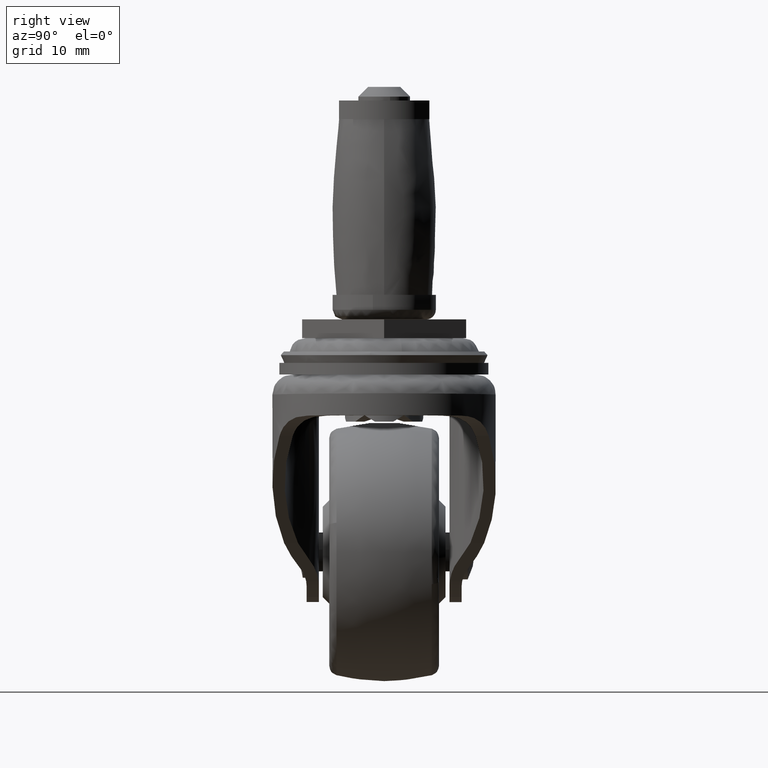
[diagram: clean part render]
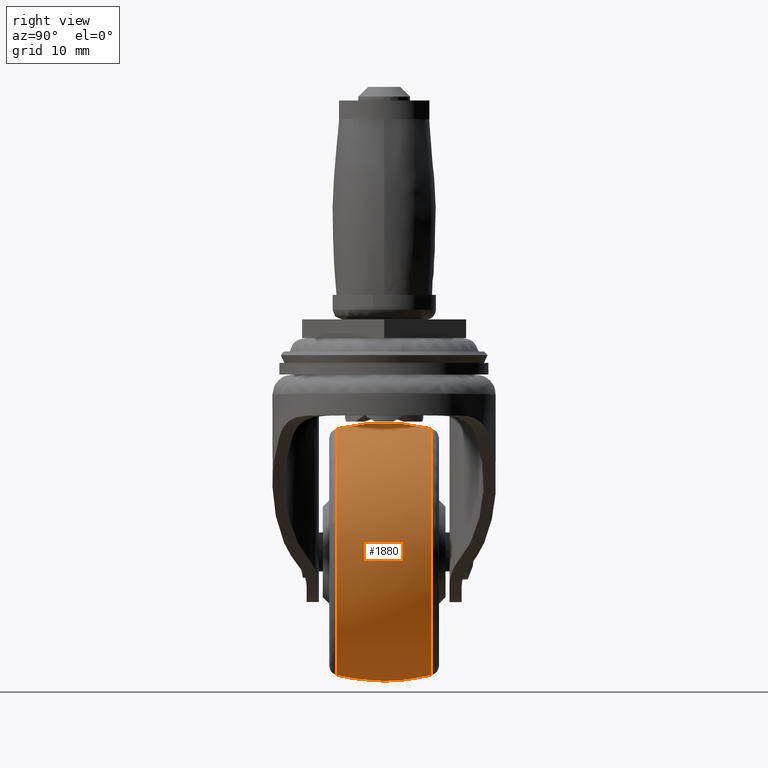
[diagram: same view with one face highlighted and labeled with its STEP entity id]
A machine part, right view. The second image highlights one B-rep face of the part: STEP entity #1880.
In plain terms, the highlighted face is a freeform B-spline surface patch.
Its self-contained STEP definition (entity closure, byte-faithful):
#1216=CARTESIAN_POINT('',(-11.320739614361690,-7.368421003013120,-53.467527986853902));
#1217=VERTEX_POINT('',#1216);
#1231=CARTESIAN_POINT('',(-0.460264550869881,-7.368420298789892,-31.487350249649111));
#1232=VERTEX_POINT('',#1231);
#1233=CARTESIAN_POINT('',(-11.320739614361681,-7.368421003013122,-53.467527986853895));
#1234=CARTESIAN_POINT('',(0.081031123244601,-7.368420835890617,-48.454961684269577));
#1235=CARTESIAN_POINT('',(0.081031123244601,-7.368420428483965,-35.999994841856477));
#1236=CARTESIAN_POINT('',(0.081031123244601,-7.368420353616889,-33.711208099936265));
#1237=CARTESIAN_POINT('',(-0.460264550869881,-7.368420298789892,-31.487350249649115));
#1245=(BOUNDED_CURVE()B_SPLINE_CURVE(2,(#1233,#1234,#1235,#1236,#1237),.UNSPECIFIED.,.F.,.U.)B_SPLINE_CURVE_WITH_KNOTS((3,2,3),(0.068337989520788,0.250000000000000,0.290401676072349),.UNSPECIFIED.)CURVE()GEOMETRIC_REPRESENTATION_ITEM()RATIONAL_B_SPLINE_CURVE((0.883644850290386,0.787169716058481,1.0,0.952666492198845,0.920631808794092))REPRESENTATION_ITEM(''));
#1246=EDGE_CURVE('',#1217,#1232,#1245,.T.);
#1345=CARTESIAN_POINT('',(-19.0,-7.368419804336250,-16.918963560468161));
#1346=VERTEX_POINT('',#1345);
#1347=CARTESIAN_POINT('',(-0.460264550869881,-7.368420298789892,-31.487350249649111));
#1348=CARTESIAN_POINT('',(-4.006267234599621,-7.368419804336250,-16.918963560468164));
#1349=CARTESIAN_POINT('',(-19.0,-7.368419804336250,-16.918963560468161));
#1357=(BOUNDED_CURVE()B_SPLINE_CURVE(2,(#1347,#1348,#1349),.UNSPECIFIED.,.F.,.U.)B_SPLINE_CURVE_WITH_KNOTS((3,3),(0.290401676072349,0.500000000000000),.UNSPECIFIED.)CURVE()GEOMETRIC_REPRESENTATION_ITEM()RATIONAL_B_SPLINE_CURVE((0.920631808794092,0.754440288987703,1.0))REPRESENTATION_ITEM(''));
#1358=EDGE_CURVE('',#1232,#1346,#1357,.T.);
#1360=CARTESIAN_POINT('',(-37.953409391230778,-7.368434857774282,-33.796840968304167));
#1361=VERTEX_POINT('',#1360);
#1375=CARTESIAN_POINT('',(-19.0,-7.368421052631679,-55.081026123244797));
#1376=VERTEX_POINT('',#1375);
#1377=CARTESIAN_POINT('',(-37.953409391230785,-7.368434857774282,-33.796840968304167));
#1378=CARTESIAN_POINT('',(-38.081027738345504,-7.368434501725785,-34.894722016344410));
#1379=CARTESIAN_POINT('',(-38.081027838976432,-7.368434101892659,-35.999995381765210));
#1380=CARTESIAN_POINT('',(-38.081029576231529,-7.368427199321360,-55.081026303070395));
#1381=CARTESIAN_POINT('',(-19.0,-7.368421052631679,-55.081026123244797));
#1389=(BOUNDED_CURVE()B_SPLINE_CURVE(2,(#1377,#1378,#1379,#1380,#1381),.UNSPECIFIED.,.F.,.U.)B_SPLINE_CURVE_WITH_KNOTS((3,2,3),(0.730000197397025,0.750000000000000,1.0),.UNSPECIFIED.)CURVE()GEOMETRIC_REPRESENTATION_ITEM()RATIONAL_B_SPLINE_CURVE((0.956886506716225,0.976568773759924,1.0,0.707106781186547,1.0))REPRESENTATION_ITEM(''));
#1390=EDGE_CURVE('',#1361,#1376,#1389,.T.);
#1392=CARTESIAN_POINT('',(-19.0,-7.368421052631679,-55.081026123244797));
#1393=CARTESIAN_POINT('',(-14.990862845425916,-7.368421052631679,-55.081026123244811));
#1394=CARTESIAN_POINT('',(-11.320739614361688,-7.368421003013119,-53.467527986853888));
#1402=(BOUNDED_CURVE()B_SPLINE_CURVE(2,(#1392,#1393,#1394),.UNSPECIFIED.,.F.,.U.)B_SPLINE_CURVE_WITH_KNOTS((3,3),(0.0,0.068337989520788),.UNSPECIFIED.)CURVE()GEOMETRIC_REPRESENTATION_ITEM()RATIONAL_B_SPLINE_CURVE((1.0,0.919937065128066,0.883644850290386))REPRESENTATION_ITEM(''));
#1403=EDGE_CURVE('',#1376,#1217,#1402,.T.);
#1432=CARTESIAN_POINT('',(-0.579522320211399,7.368414132267487,-40.977120057401933));
#1433=VERTEX_POINT('',#1432);
#1434=CARTESIAN_POINT('',(-19.0,7.368401587325634,-16.918958944737611));
#1435=VERTEX_POINT('',#1434);
#1436=CARTESIAN_POINT('',(-0.579522320211399,7.368414132267487,-40.977120057401933));
#1437=CARTESIAN_POINT('',(0.081032112683026,7.368412871383691,-38.532390176140254));
#1438=CARTESIAN_POINT('',(0.081032043510278,7.368411561528695,-35.999992782642543));
#1439=CARTESIAN_POINT('',(0.081031522309482,7.368401692071616,-16.918959052562993));
#1440=CARTESIAN_POINT('',(-19.0,7.368401587325634,-16.918958944737611));
#1448=(BOUNDED_CURVE()B_SPLINE_CURVE(2,(#1436,#1437,#1438,#1439,#1440),.UNSPECIFIED.,.F.,.U.)B_SPLINE_CURVE_WITH_KNOTS((3,2,3),(0.205522192764955,0.250000000000000,0.500000000000000),.UNSPECIFIED.)CURVE()GEOMETRIC_REPRESENTATION_ITEM()RATIONAL_B_SPLINE_CURVE((0.914323564776941,0.947891007492654,1.0,0.707106781186548,1.0))REPRESENTATION_ITEM(''));
#1449=EDGE_CURVE('',#1433,#1435,#1448,.T.);
#1552=CARTESIAN_POINT('',(-19.0,7.368421052631670,-55.081026123244847));
#1553=VERTEX_POINT('',#1552);
#1554=CARTESIAN_POINT('',(-19.0,7.368421052631670,-55.081026123244847));
#1555=CARTESIAN_POINT('',(-4.390331852213202,7.368421189435704,-55.081026264070765));
#1556=CARTESIAN_POINT('',(-0.579522320211399,7.368414132267487,-40.977120057401933));
#1564=(BOUNDED_CURVE()B_SPLINE_CURVE(2,(#1554,#1555,#1556),.UNSPECIFIED.,.F.,.U.)B_SPLINE_CURVE_WITH_KNOTS((3,3),(0.0,0.205522192764955),.UNSPECIFIED.)CURVE()GEOMETRIC_REPRESENTATION_ITEM()RATIONAL_B_SPLINE_CURVE((1.0,0.759215773693894,0.914323564776941))REPRESENTATION_ITEM(''));
#1565=EDGE_CURVE('',#1553,#1433,#1564,.T.);
#1567=CARTESIAN_POINT('',(-37.953413906588317,7.368416801320509,-33.796840189596473));
#1568=VERTEX_POINT('',#1567);
#1569=CARTESIAN_POINT('',(-37.953413906588317,7.368416801320510,-33.796840189596473));
#1570=CARTESIAN_POINT('',(-38.081032165609727,7.368416910966106,-34.894721375222694));
#1571=CARTESIAN_POINT('',(-38.081032134620862,7.368417034095237,-35.999994882437299));
#1572=CARTESIAN_POINT('',(-38.081031599640646,7.368419159750817,-55.081026067868336));
#1573=CARTESIAN_POINT('',(-19.0,7.368421052631670,-55.081026123244847));
#1581=(BOUNDED_CURVE()B_SPLINE_CURVE(2,(#1569,#1570,#1571,#1572,#1573),.UNSPECIFIED.,.F.,.U.)B_SPLINE_CURVE_WITH_KNOTS((3,2,3),(0.730000195161757,0.750000000000000,1.0),.UNSPECIFIED.)CURVE()GEOMETRIC_REPRESENTATION_ITEM()RATIONAL_B_SPLINE_CURVE((0.956886502316667,0.976568771141144,1.0,0.707106781186548,1.0))REPRESENTATION_ITEM(''));
#1582=EDGE_CURVE('',#1568,#1553,#1581,.T.);
#1788=CARTESIAN_POINT('',(-37.756844491893041,-8.109508303026100,-33.819668057744877));
#1789=CARTESIAN_POINT('',(-38.866232832661481,-4.131662170572938,-33.690710903472649));
#1790=CARTESIAN_POINT('',(-38.866232832661474,4.775964E-015,-33.690710903472656));
#1791=CARTESIAN_POINT('',(-38.866232832661481,4.131654297377666,-33.690710903472656));
#1792=CARTESIAN_POINT('',(-37.756848641234306,8.109493425046278,-33.819667575418514));
#1793=CARTESIAN_POINT('',(-37.883141710747793,-8.109508303026100,-34.906173594096508));
#1794=CARTESIAN_POINT('',(-38.999999999999794,-4.131662170572938,-34.841478665526985));
#1795=CARTESIAN_POINT('',(-38.999999999999801,4.775964E-015,-34.841478665526992));
#1796=CARTESIAN_POINT('',(-38.999999999999801,4.131654297377665,-34.841478665526992));
#1797=CARTESIAN_POINT('',(-37.883145888028189,8.109493425046278,-34.906173352124142));
#1798=CARTESIAN_POINT('',(-37.883141710747793,-8.109508303026104,-35.999995000000204));
#1799=CARTESIAN_POINT('',(-38.999999999999808,-4.131662170572938,-35.999995000000204));
#1800=CARTESIAN_POINT('',(-38.999999999999801,4.775964E-015,-35.999995000000197));
#1801=CARTESIAN_POINT('',(-38.999999999999787,4.131654297377665,-35.999995000000204));
#1802=CARTESIAN_POINT('',(-37.883145888028182,8.109493425046278,-35.999995000000197));
#1803=CARTESIAN_POINT('',(-37.883141710747800,-8.109508303026104,-54.883136710748012));
#1804=CARTESIAN_POINT('',(-38.999999999999808,-4.131662170572936,-55.999995000000013));
#1805=CARTESIAN_POINT('',(-38.999999999999794,4.775964E-015,-55.999995000000006));
#1806=CARTESIAN_POINT('',(-38.999999999999801,4.131654297377666,-55.999995000000013));
#1807=CARTESIAN_POINT('',(-37.883145888028203,8.109493425046278,-54.883140888028407));
#1808=CARTESIAN_POINT('',(-18.999999999999996,-8.109508303026104,-54.883136710747998));
#1809=CARTESIAN_POINT('',(-18.999999999999996,-4.131662170572938,-55.999994999999998));
#1810=CARTESIAN_POINT('',(-19.0,4.775964E-015,-55.999994999999998));
#1811=CARTESIAN_POINT('',(-18.999999999999996,4.131654297377665,-55.999994999999998));
#1812=CARTESIAN_POINT('',(-19.000000000000004,8.109493425046278,-54.883140888028379));
#1813=CARTESIAN_POINT('',(-0.116858289252203,-8.109508303026104,-54.883136710748012));
#1814=CARTESIAN_POINT('',(0.999999999999801,-4.131662170572936,-55.999995000000013));
#1815=CARTESIAN_POINT('',(0.999999999999800,4.775964E-015,-55.999995000000006));
#1816=CARTESIAN_POINT('',(0.999999999999801,4.131654297377666,-55.999995000000013));
#1817=CARTESIAN_POINT('',(-0.116854111971810,8.109493425046278,-54.883140888028407));
#1818=CARTESIAN_POINT('',(-0.116858289252203,-8.109508303026104,-35.999995000000204));
#1819=CARTESIAN_POINT('',(0.999999999999800,-4.131662170572938,-35.999995000000204));
#1820=CARTESIAN_POINT('',(0.999999999999800,4.775964E-015,-35.999995000000197));
#1821=CARTESIAN_POINT('',(0.999999999999800,4.131654297377665,-35.999995000000204));
#1822=CARTESIAN_POINT('',(-0.116854111971810,8.109493425046278,-35.999995000000197));
#1823=CARTESIAN_POINT('',(-0.116858289252203,-8.109508303026104,-17.116853289252415));
#1824=CARTESIAN_POINT('',(0.999999999999801,-4.131662170572936,-15.999995000000403));
#1825=CARTESIAN_POINT('',(0.999999999999800,4.775964E-015,-15.999995000000403));
#1826=CARTESIAN_POINT('',(0.999999999999801,4.131654297377666,-15.999995000000405));
#1827=CARTESIAN_POINT('',(-0.116854111971810,8.109493425046278,-17.116849111972009));
#1828=CARTESIAN_POINT('',(-18.999999999999996,-8.109508303026104,-17.116853289252404));
#1829=CARTESIAN_POINT('',(-18.999999999999996,-4.131662170572938,-15.999995000000400));
#1830=CARTESIAN_POINT('',(-19.0,4.775964E-015,-15.999995000000400));
#1831=CARTESIAN_POINT('',(-18.999999999999996,4.131654297377665,-15.999995000000396));
#1832=CARTESIAN_POINT('',(-19.000000000000004,8.109493425046278,-17.116849111972012));
#1840=(BOUNDED_SURFACE()B_SPLINE_SURFACE(2,2,((#1788,#1793,#1798,#1803,#1808,#1813,#1818,#1823,#1828),(#1789,#1794,#1799,#1804,#1809,#1814,#1819,#1824,#1829),(#1790,#1795,#1800,#1805,#1810,#1815,#1820,#1825,#1830),(#1791,#1796,#1801,#1806,#1811,#1816,#1821,#1826,#1831),(#1792,#1797,#1802,#1807,#1812,#1817,#1822,#1827,#1832)),.UNSPECIFIED.,.F.,.F.,.U.)B_SPLINE_SURFACE_WITH_KNOTS((3,2,3),(3,2,2,2,3),(0.0,8.464487464956038,16.928959476628389),(0.0,2.650966246153012,35.788051236000292,68.925136225847567,102.062221215694810),.UNSPECIFIED.)GEOMETRIC_REPRESENTATION_ITEM()RATIONAL_B_SPLINE_SURFACE(((0.894969526226610,0.913378369759488,0.935293658808746,0.661352488544441,0.935293658808746,0.661352488544441,0.935293658808746,0.661352488544441,0.935293658808746),(0.916756746257921,0.935613736362073,0.958062533213076,0.677452514035728,0.958062533213076,0.677452514035728,0.958062533213076,0.677452514035728,0.958062533213076),(0.956886126402807,0.976568547383107,1.0,0.707106781186548,1.0,0.707106781186548,1.0,0.707106781186548,1.0),(0.916756819520561,0.935613811131670,0.958062609776669,0.677452568174364,0.958062609776669,0.677452568174364,0.958062609776669,0.677452568174364,0.958062609776669),(0.894969605778822,0.913378450948029,0.935293741945297,0.661352547330860,0.935293741945297,0.661352547330860,0.935293741945297,0.661352547330860,0.935293741945297)))REPRESENTATION_ITEM('')SURFACE());
#1841=ORIENTED_EDGE('',*,*,#1390,.F.);
#1842=CARTESIAN_POINT('',(-37.953409391230778,-7.368434857774282,-33.796840968304167));
#1843=CARTESIAN_POINT('',(-38.866235339523946,-3.741523372527643,-33.690732469653888));
#1844=CARTESIAN_POINT('',(-38.866235332133428,4.519655E-013,-33.690732406067120));
#1845=CARTESIAN_POINT('',(-38.866235324742910,3.741513914139994,-33.690732342480516));
#1846=CARTESIAN_POINT('',(-37.953413906588331,7.368416801320509,-33.796840189596473));
#1854=(BOUNDED_CURVE()B_SPLINE_CURVE(2,(#1842,#1843,#1844,#1845,#1846),.UNSPECIFIED.,.F.,.U.)B_SPLINE_CURVE_WITH_KNOTS((3,2,3),(0.396109718784471,0.500000000000000,0.603890028599598),.UNSPECIFIED.)CURVE()GEOMETRIC_REPRESENTATION_ITEM()RATIONAL_B_SPLINE_CURVE((0.899078533813368,0.920401539779731,0.956886118190660,0.920401628494341,0.899078637509991))REPRESENTATION_ITEM(''));
#1855=EDGE_CURVE('',#1361,#1568,#1854,.T.);
#1856=ORIENTED_EDGE('',*,*,#1855,.T.);
#1857=ORIENTED_EDGE('',*,*,#1582,.T.);
#1858=ORIENTED_EDGE('',*,*,#1565,.T.);
#1859=ORIENTED_EDGE('',*,*,#1449,.T.);
#1860=CARTESIAN_POINT('',(-19.000000000000004,-7.368419804336261,-16.918963560468121));
#1861=CARTESIAN_POINT('',(-18.999999999999996,-3.741515487188618,-15.999995000000409));
#1862=CARTESIAN_POINT('',(-19.0,4.775964E-015,-15.999995000000400));
#1863=CARTESIAN_POINT('',(-18.999999999999996,3.741505944699891,-15.999995000000398));
#1864=CARTESIAN_POINT('',(-18.999999999999993,7.368401587325634,-16.918958944737611));
#1872=(BOUNDED_CURVE()B_SPLINE_CURVE(2,(#1860,#1861,#1862,#1863,#1864),.UNSPECIFIED.,.F.,.U.)B_SPLINE_CURVE_WITH_KNOTS((3,2,3),(0.396109929387279,0.500000000000000,0.603889815750591),.UNSPECIFIED.)CURVE()GEOMETRIC_REPRESENTATION_ITEM()RATIONAL_B_SPLINE_CURVE((0.939587902021187,0.961871633669812,1.0,0.961871727205956,0.939588011353759))REPRESENTATION_ITEM(''));
#1873=EDGE_CURVE('',#1346,#1435,#1872,.T.);
#1874=ORIENTED_EDGE('',*,*,#1873,.F.);
#1875=ORIENTED_EDGE('',*,*,#1358,.F.);
#1876=ORIENTED_EDGE('',*,*,#1246,.F.);
#1877=ORIENTED_EDGE('',*,*,#1403,.F.);
#1878=EDGE_LOOP('',(#1841,#1856,#1857,#1858,#1859,#1874,#1875,#1876,#1877));
#1879=FACE_OUTER_BOUND('',#1878,.T.);
#1880=ADVANCED_FACE('',(#1879),#1840,.T.);